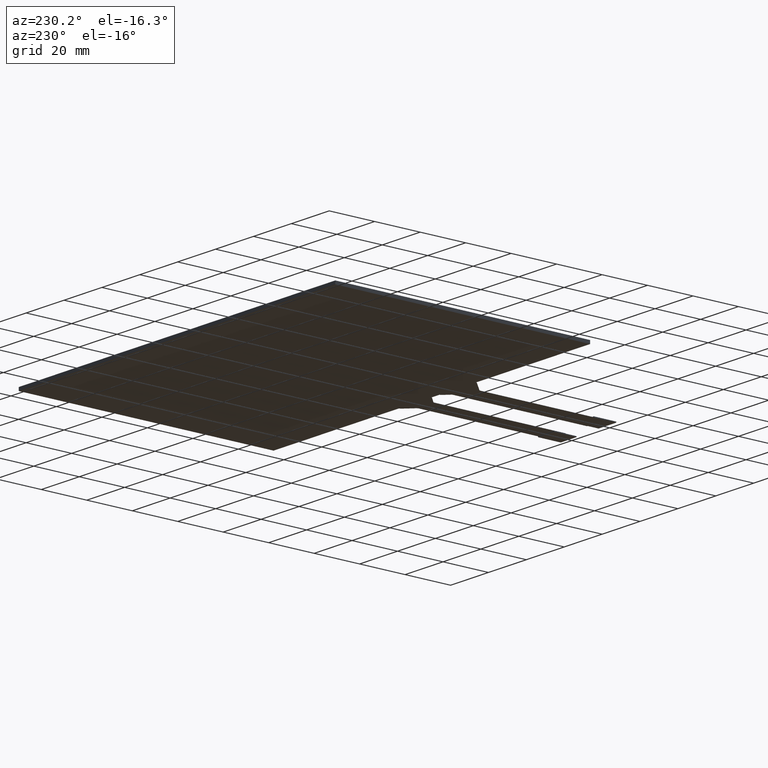
[diagram: clean part render]
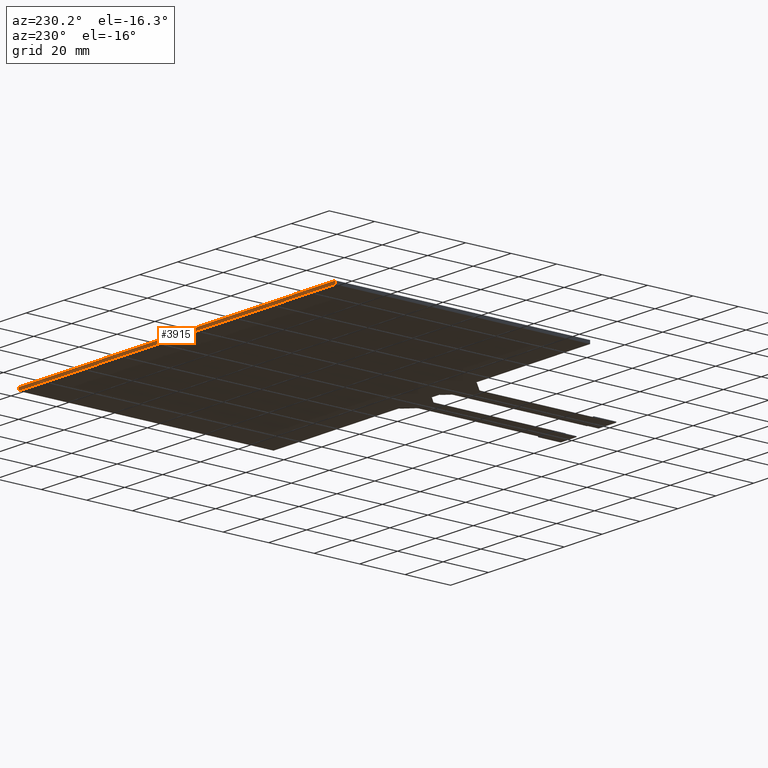
[diagram: same view with one face highlighted and labeled with its STEP entity id]
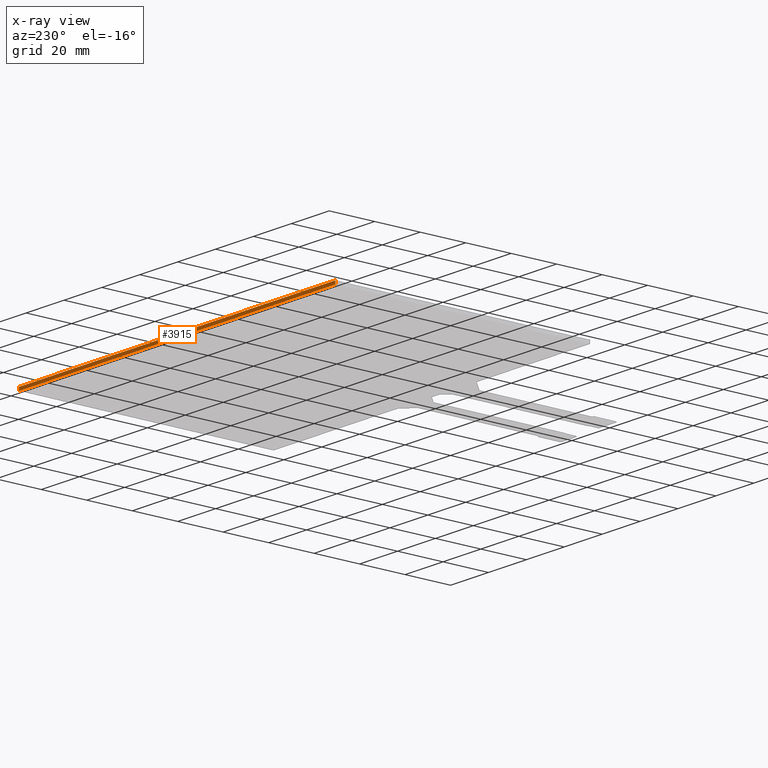
[diagram: x-ray of the same camera — body ghosted, the highlighted face saturated]
A machine part, auxiliary view. The second image highlights one B-rep face of the part: STEP entity #3915.
The next image is the same camera in x-ray: the body ghosted, the highlighted face saturated — about 0% of this face is hidden behind the body in this view.
In plain terms, the highlighted planar face has unit normal (0, 1, 0).
Its self-contained STEP definition (entity closure, byte-faithful):
#225=PLANE('',#4149);
#415=FACE_OUTER_BOUND('',#609,.T.);
#609=EDGE_LOOP('',(#3704,#3705,#3706,#3707));
#1128=LINE('',#6197,#1656);
#1132=LINE('',#6205,#1660);
#1138=LINE('',#6216,#1666);
#1139=LINE('',#6218,#1667);
#1656=VECTOR('',#5086,10.);
#1660=VECTOR('',#5092,10.);
#1666=VECTOR('',#5102,10.);
#1667=VECTOR('',#5105,10.);
#2052=VERTEX_POINT('',#6195);
#2053=VERTEX_POINT('',#6196);
#2056=VERTEX_POINT('',#6204);
#2059=VERTEX_POINT('',#6214);
#2600=EDGE_CURVE('',#2052,#2053,#1128,.T.);
#2604=EDGE_CURVE('',#2053,#2056,#1132,.T.);
#2610=EDGE_CURVE('',#2052,#2059,#1138,.T.);
#2611=EDGE_CURVE('',#2056,#2059,#1139,.T.);
#3704=ORIENTED_EDGE('',*,*,#2600,.F.);
#3705=ORIENTED_EDGE('',*,*,#2610,.T.);
#3706=ORIENTED_EDGE('',*,*,#2611,.F.);
#3707=ORIENTED_EDGE('',*,*,#2604,.F.);
#3915=ADVANCED_FACE('',(#415),#225,.T.);
#4149=AXIS2_PLACEMENT_3D('',#6217,#5103,#5104);
#5086=DIRECTION('',(-1.,0.,0.));
#5092=DIRECTION('',(0.,0.,-1.));
#5102=DIRECTION('',(0.,0.,-1.));
#5103=DIRECTION('center_axis',(0.,1.,0.));
#5104=DIRECTION('ref_axis',(1.,0.,0.));
#5105=DIRECTION('',(1.,0.,0.));
#6195=CARTESIAN_POINT('',(83.55,53.65,0.));
#6196=CARTESIAN_POINT('',(-83.55,53.65,0.));
#6197=CARTESIAN_POINT('',(83.55,53.65,0.));
#6204=CARTESIAN_POINT('',(-83.55,53.65,-1.4));
#6205=CARTESIAN_POINT('',(-83.55,53.65,0.));
#6214=CARTESIAN_POINT('',(83.55,53.65,-1.4));
#6216=CARTESIAN_POINT('',(83.55,53.65,0.));
#6217=CARTESIAN_POINT('Origin',(-83.55,53.65,0.));
#6218=CARTESIAN_POINT('',(83.55,53.65,-1.4));